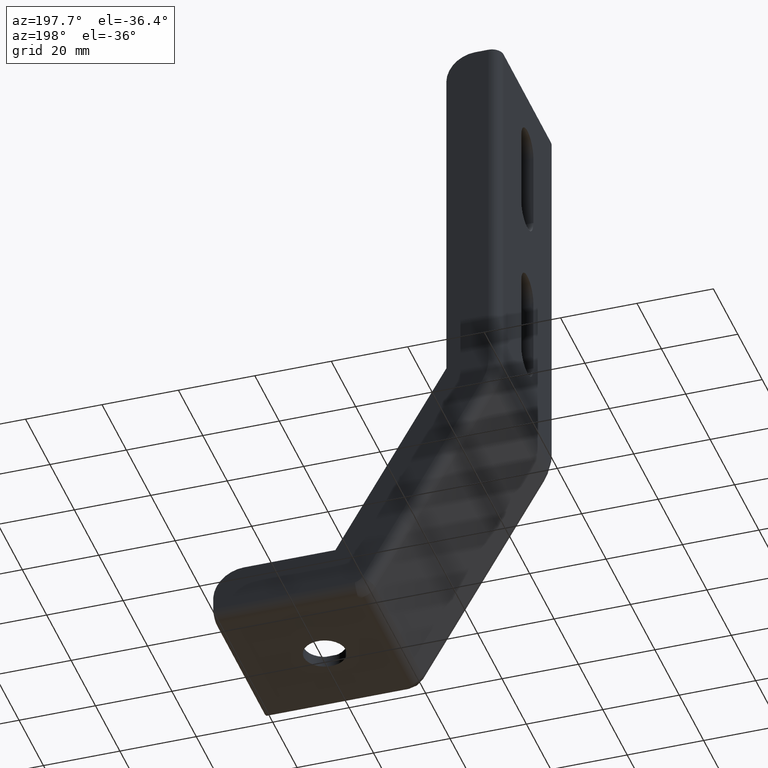
[diagram: clean part render]
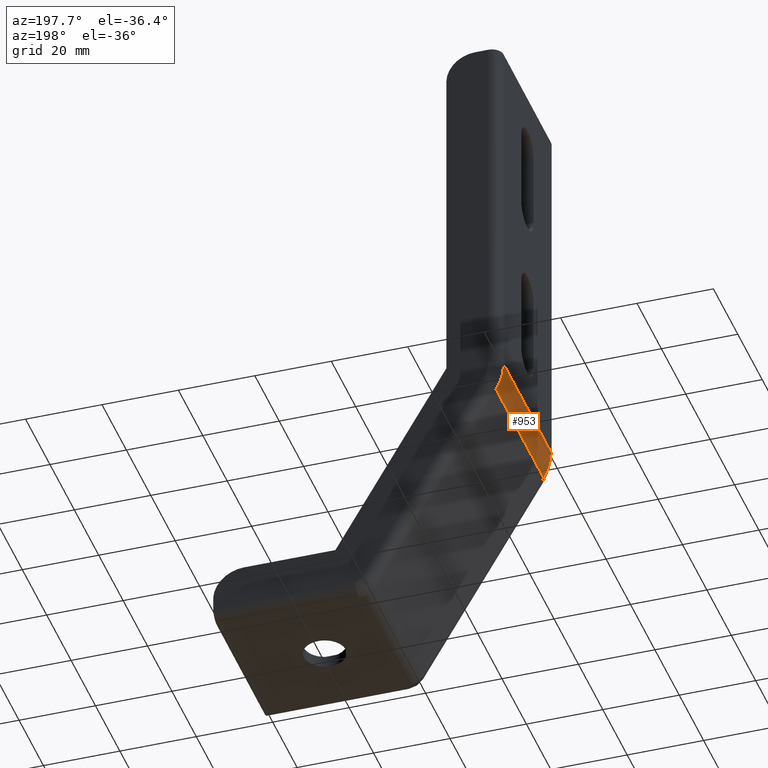
[diagram: same view with one face highlighted and labeled with its STEP entity id]
A machine part, auxiliary view. The second image highlights one B-rep face of the part: STEP entity #953.
In plain terms, the highlighted cylindrical surface (partial cylindrical patch) has radius 14.2778 mm, axis along (0, 1, -0).
Its self-contained STEP definition (entity closure, byte-faithful):
#390=CARTESIAN_POINT('',(-51.056375888017556,-19.499907517413018,56.670789657716341));
#391=VERTEX_POINT('',#390);
#414=CARTESIAN_POINT('',(-52.999894000779022,-19.499907517413018,64.055108888691393));
#415=VERTEX_POINT('',#414);
#429=CARTESIAN_POINT('',(-38.723337911614188,-19.499907517413025,63.864709315151238));
#430=DIRECTION('',(0.0,1.000000000000000,-6.123234E-017));
#431=DIRECTION('',(-0.863789645875683,-3.085207E-017,-0.503852605111816));
#432=AXIS2_PLACEMENT_3D('',#429,#430,#431);
#433=CIRCLE('',#432,14.277825666572484);
#434=EDGE_CURVE('',#391,#415,#433,.T.);
#600=CARTESIAN_POINT('',(-51.056375888017556,19.500002482406902,56.670789657716341));
#601=VERTEX_POINT('',#600);
#602=CARTESIAN_POINT('',(-52.999894000791755,19.500002482406902,64.055108888691393));
#603=VERTEX_POINT('',#602);
#604=CARTESIAN_POINT('',(-38.723337911614188,19.500002482406909,63.864709315151238));
#605=DIRECTION('',(0.0,1.000000000000000,-6.123234E-017));
#606=DIRECTION('',(-0.863789645875683,-3.085207E-017,-0.503852605111816));
#607=AXIS2_PLACEMENT_3D('',#604,#605,#606);
#608=CIRCLE('',#607,14.277825666572484);
#609=EDGE_CURVE('',#601,#603,#608,.T.);
#932=CARTESIAN_POINT('',(-38.723337911614180,22.500002482406902,63.864709315151231));
#933=DIRECTION('',(0.0,1.0,-6.123234E-017));
#934=DIRECTION('',(-0.863789645875683,-3.085207E-017,-0.503852605111816));
#935=AXIS2_PLACEMENT_3D('',#932,#933,#934);
#936=CYLINDRICAL_SURFACE('',#935,14.277825666572484);
#937=ORIENTED_EDGE('',*,*,#434,.T.);
#938=CARTESIAN_POINT('',(-52.999894000779022,19.500002482406902,64.055108888691393));
#939=DIRECTION('',(0.0,-1.0,0.0));
#940=VECTOR('',#939,38.999909999819920);
#941=LINE('',#938,#940);
#942=EDGE_CURVE('',#603,#415,#941,.T.);
#943=ORIENTED_EDGE('',*,*,#942,.F.);
#944=ORIENTED_EDGE('',*,*,#609,.F.);
#945=CARTESIAN_POINT('',(-51.056375888017556,19.500002482406902,56.670789657716341));
#946=DIRECTION('',(0.0,-1.0,0.0));
#947=VECTOR('',#946,38.999909999819920);
#948=LINE('',#945,#947);
#949=EDGE_CURVE('',#601,#391,#948,.T.);
#950=ORIENTED_EDGE('',*,*,#949,.T.);
#951=EDGE_LOOP('',(#937,#943,#944,#950));
#952=FACE_OUTER_BOUND('',#951,.T.);
#953=ADVANCED_FACE('',(#952),#936,.T.);